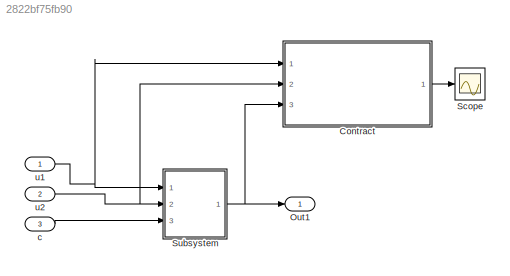
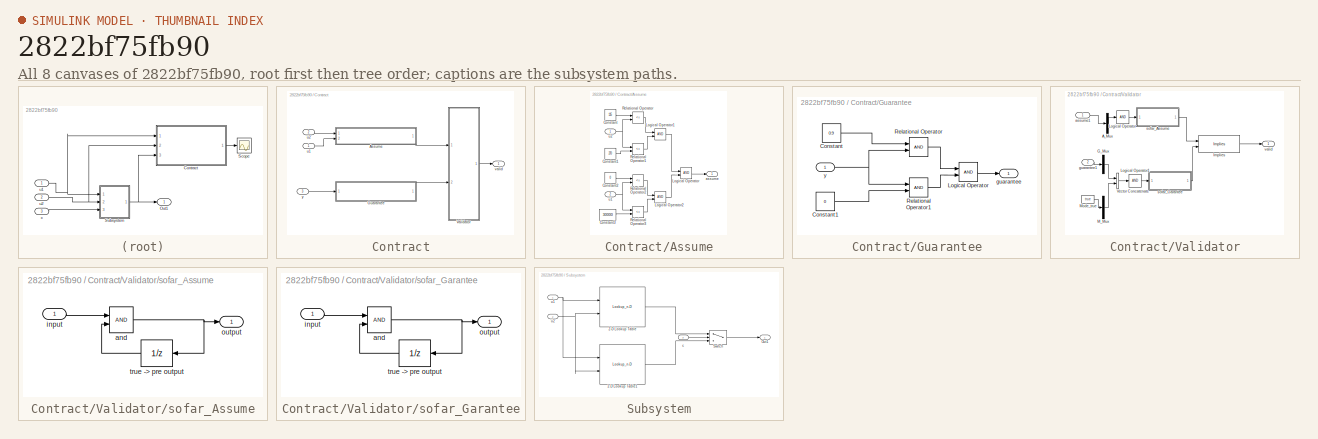
[diagram: thumbnail index - all 8 canvases of the model, root first then tree order]
MODEL slx_2822bf75fb90
KIND model
CONFIG AbsTol = auto
CONFIG EnableMultiTasking = off
CONFIG FixedStep = auto
CONFIG MaxStep = auto
CONFIG MinStep = auto
CONFIG RelTol = 1e-3
CONFIG SampleTimeConstraint = Unconstrained
CONFIG Solver = VariableStepAuto
CONFIG SolverName = VariableStepAuto
CONFIG StartTime = 0.0
CONFIG StopTime = 10.0
BLOCK [SubSystem] Contract
  CopyFcn = set_param(gcb, 'LinkStatus', 'none');
  Ports = [3, 1]
  RequestExecContextInheritance = off
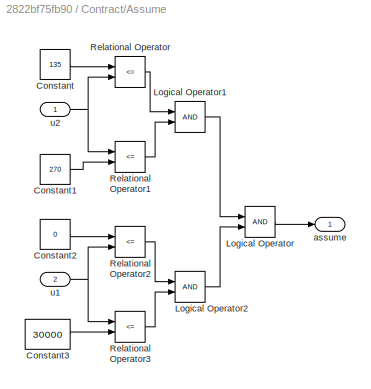
BLOCK [SubSystem] Contract/Assume
  Ports = [2, 1]
  RequestExecContextInheritance = off
BLOCK [Constant] Contract/Assume/Constant
  Value = 135
BLOCK [Constant] Contract/Assume/Constant1
  Value = 270
BLOCK [Constant] Contract/Assume/Constant2
  Value = 0
BLOCK [Constant] Contract/Assume/Constant3
  Value = 30000
BLOCK [Logic] Contract/Assume/Logical Operator
  AllPortsSameDT = off
  OutDataTypeStr = boolean
  Ports = [2, 1]
BLOCK [Logic] Contract/Assume/Logical Operator1
  AllPortsSameDT = off
  OutDataTypeStr = boolean
  Ports = [2, 1]
BLOCK [Logic] Contract/Assume/Logical Operator2
  AllPortsSameDT = off
  OutDataTypeStr = boolean
  Ports = [2, 1]
BLOCK [RelationalOperator] Contract/Assume/Relational Operator
  InputSameDT = off
  Operator = <=
  OutDataTypeStr = boolean
  Ports = [2, 1]
  RndMeth = Simplest
BLOCK [RelationalOperator] Contract/Assume/Relational Operator1
  InputSameDT = off
  Operator = <=
  OutDataTypeStr = boolean
  Ports = [2, 1]
  RndMeth = Simplest
BLOCK [RelationalOperator] Contract/Assume/Relational Operator2
  InputSameDT = off
  Operator = <=
  OutDataTypeStr = boolean
  Ports = [2, 1]
  RndMeth = Simplest
BLOCK [RelationalOperator] Contract/Assume/Relational Operator3
  InputSameDT = off
  Operator = <=
  OutDataTypeStr = boolean
  Ports = [2, 1]
  RndMeth = Simplest
BLOCK [Outport] Contract/Assume/assume
  IconDisplay = Port number
  OutDataTypeStr = boolean
BLOCK [Inport] Contract/Assume/u1
  IconDisplay = Port number
  Port = 2
BLOCK [Inport] Contract/Assume/u2
  IconDisplay = Port number
BLOCK [SubSystem] Contract/Guarantee
  Ports = [1, 1]
  RequestExecContextInheritance = off
BLOCK [Constant] Contract/Guarantee/Constant
  Value = 0.9
BLOCK [Constant] Contract/Guarantee/Constant1
  Value = 0
BLOCK [Logic] Contract/Guarantee/Logical Operator
  AllPortsSameDT = off
  OutDataTypeStr = boolean
  Ports = [2, 1]
BLOCK [RelationalOperator] Contract/Guarantee/Relational Operator
  InputSameDT = off
  OutDataTypeStr = boolean
  Ports = [2, 1]
  RndMeth = Simplest
BLOCK [RelationalOperator] Contract/Guarantee/Relational Operator1
  InputSameDT = off
  OutDataTypeStr = boolean
  Ports = [2, 1]
  RndMeth = Simplest
BLOCK [Outport] Contract/Guarantee/guarantee
  IconDisplay = Port number
  OutDataTypeStr = boolean
BLOCK [Inport] Contract/Guarantee/y
  IconDisplay = Port number
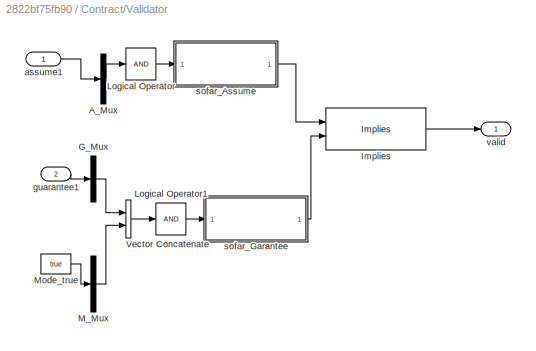
BLOCK [SubSystem] Contract/Validator
  Ports = [2, 1]
  RequestExecContextInheritance = off
BLOCK [Mux] Contract/Validator/A_Mux
  DisplayOption = bar
  Inputs = 1
  Ports = [1, 1]
BLOCK [Mux] Contract/Validator/G_Mux
  DisplayOption = bar
  Inputs = 1
  Ports = [1, 1]
BLOCK [Reference] Contract/Validator/Implies  REF=cocosimLibs/Implies
  Ports = [2, 1]
  SourceBlock = cocosimLibs/Implies
  SourceProductName = CoCoSim Specification Library
  SourceType = CoCoSimImplies
BLOCK [Logic] Contract/Validator/Logical Operator
  AllPortsSameDT = off
  Inputs = 1
  OutDataTypeStr = boolean
  Ports = [1, 1]
BLOCK [Logic] Contract/Validator/Logical Operator1
  AllPortsSameDT = off
  Inputs = 1
  OutDataTypeStr = boolean
  Ports = [1, 1]
BLOCK [Mux] Contract/Validator/M_Mux
  DisplayOption = bar
  Inputs = 1
  Ports = [1, 1]
BLOCK [Constant] Contract/Validator/Mode_true
  OutDataTypeStr = boolean
  Value = true
BLOCK [Concatenate] Contract/Validator/Vector Concatenate
  Ports = [2, 1]
BLOCK [Inport] Contract/Validator/assume1
  IconDisplay = Port number
  OutDataTypeStr = boolean
  PortDimensions = 1
BLOCK [Inport] Contract/Validator/guarantee1
  IconDisplay = Port number
  OutDataTypeStr = boolean
  Port = 2
  PortDimensions = 1
BLOCK [SubSystem] Contract/Validator/sofar_Assume
  Ports = [1, 1]
  RequestExecContextInheritance = off
BLOCK [Logic] Contract/Validator/sofar_Assume/and
  AllPortsSameDT = off
  OutDataTypeStr = boolean
  Ports = [2, 1]
BLOCK [Inport] Contract/Validator/sofar_Assume/input
  IconDisplay = Port number
  OutDataTypeStr = boolean
BLOCK [Outport] Contract/Validator/sofar_Assume/output
  IconDisplay = Port number
  OutDataTypeStr = boolean
BLOCK [UnitDelay] Contract/Validator/sofar_Assume/true -> pre output
  HasFrameUpgradeWarning = on
  InitialCondition = true
  SampleTime = -1
BLOCK [SubSystem] Contract/Validator/sofar_Garantee
  Ports = [1, 1]
  RequestExecContextInheritance = off
BLOCK [Logic] Contract/Validator/sofar_Garantee/and
  AllPortsSameDT = off
  OutDataTypeStr = boolean
  Ports = [2, 1]
BLOCK [Inport] Contract/Validator/sofar_Garantee/input
  IconDisplay = Port number
  OutDataTypeStr = boolean
BLOCK [Outport] Contract/Validator/sofar_Garantee/output
  IconDisplay = Port number
  OutDataTypeStr = boolean
BLOCK [UnitDelay] Contract/Validator/sofar_Garantee/true -> pre output
  HasFrameUpgradeWarning = on
  InitialCondition = true
  SampleTime = -1
BLOCK [Outport] Contract/Validator/valid
  IconDisplay = Port number
BLOCK [Inport] Contract/u1
  IconDisplay = Port number
BLOCK [Inport] Contract/u2
  IconDisplay = Port number
  Port = 2
BLOCK [Outport] Contract/valid
  IconDisplay = Port number
BLOCK [Inport] Contract/y
  IconDisplay = Port number
  Port = 3
BLOCK [Outport] Out1
  IconDisplay = Port number
BLOCK [Scope] Scope
  Floating = off
  NumInputPorts = 1
  Ports = [1]
  ScopeSpecificationString = Simulink.scopes.TimeScopeBlockCfg('CurrentConfiguration', extmgr.ConfigurationSet(extmgr.Configuration('Core','General UI',true),extmgr.Configuration('Core','Source UI',true),extmgr.Configuration('Sources','WiredSimulink',true),extmgr.Configuration('Visuals','Time Domain',true),extmgr.Configuration('Tools','Plot Navigation',true),extmgr.Configuration('Tools','Measurements',true)),'Version','2019b'...<+1ch>
BLOCK [SubSystem] Subsystem
  Ports = [3, 1]
  RequestExecContextInheritance = off
BLOCK [Lookup_n-D] Subsystem/2-D Lookup Table
  BreakpointsForDimension1 = [0, 5000, 10000, 15000, 20000, 30000]
  BreakpointsForDimension2 = [135; 200; 245; 250; 270]
  ExtrapMethod = Clip
  InternalRulePriority = Speed
  Ports = [2, 1]
  RndMeth = Simplest
  Table = B
BLOCK [Lookup_n-D] Subsystem/2-D Lookup Table1
  BreakpointsForDimension1 = [0, 5000, 10000, 15000, 20000, 30000]
  BreakpointsForDimension2 = [135; 200; 245; 250; 270]
  ExtrapMethod = Clip
  InternalRulePriority = Speed
  Ports = [2, 1]
  RndMeth = Simplest
  Table = A
BLOCK [Outport] Subsystem/Out1
  IconDisplay = Port number
BLOCK [Switch] Subsystem/Switch
  Criteria = u2 > Threshold
  InputSameDT = off
  SaturateOnIntegerOverflow = off
BLOCK [Inport] Subsystem/c
  IconDisplay = Port number
  Port = 3
BLOCK [Inport] Subsystem/u1
  IconDisplay = Port number
BLOCK [Inport] Subsystem/u2
  IconDisplay = Port number
  Port = 2
BLOCK [Inport] c
  IconDisplay = Port number
  Port = 3
BLOCK [Inport] u1
  IconDisplay = Port number
BLOCK [Inport] u2
  IconDisplay = Port number
  Port = 2
LINE Contract:1 -> Scope:1
LINE Subsystem/2-D Lookup Table1:1 -> Subsystem/Switch:3
LINE Subsystem/2-D Lookup Table:1 -> Subsystem/Switch:1
LINE Subsystem/Switch:1 -> Subsystem/Out1:1
LINE Subsystem/c:1 -> Subsystem/Switch:2
NET Subsystem/u1:1 -> Subsystem/2-D Lookup Table1:1, Subsystem/2-D Lookup Table:1
NET Subsystem/u2:1 -> Subsystem/2-D Lookup Table1:2, Subsystem/2-D Lookup Table:2
NET Subsystem:1 -> Contract:3, Out1:1
LINE c:1 -> Subsystem:3
NET u1:1 -> Contract:1, Subsystem:1
NET u2:1 -> Contract:2, Subsystem:2
note: NET lines group one-source signal fan-out (src -> all destinations, sorted); 1:1 wires keep LINE
